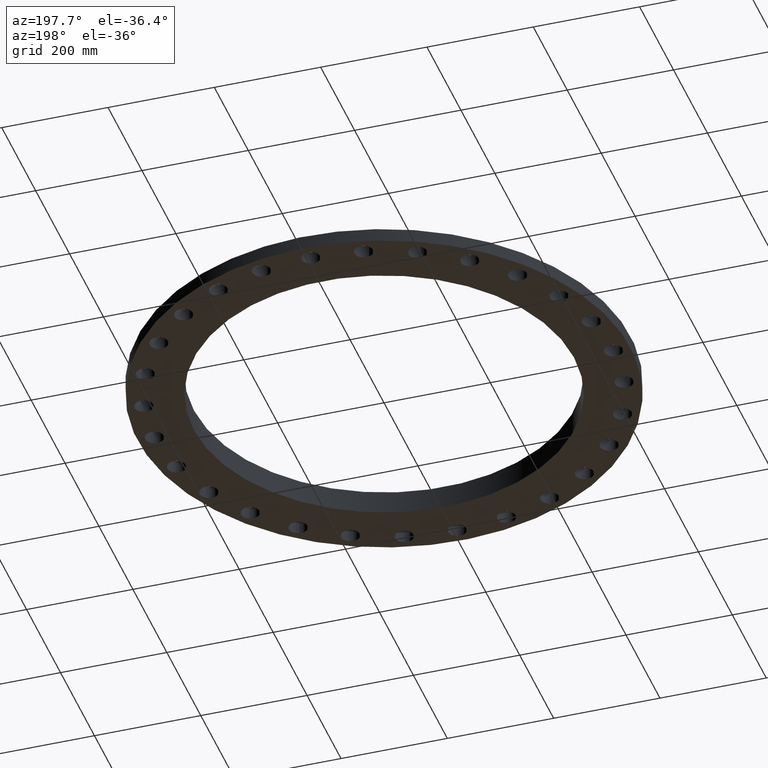
[diagram: clean part render]
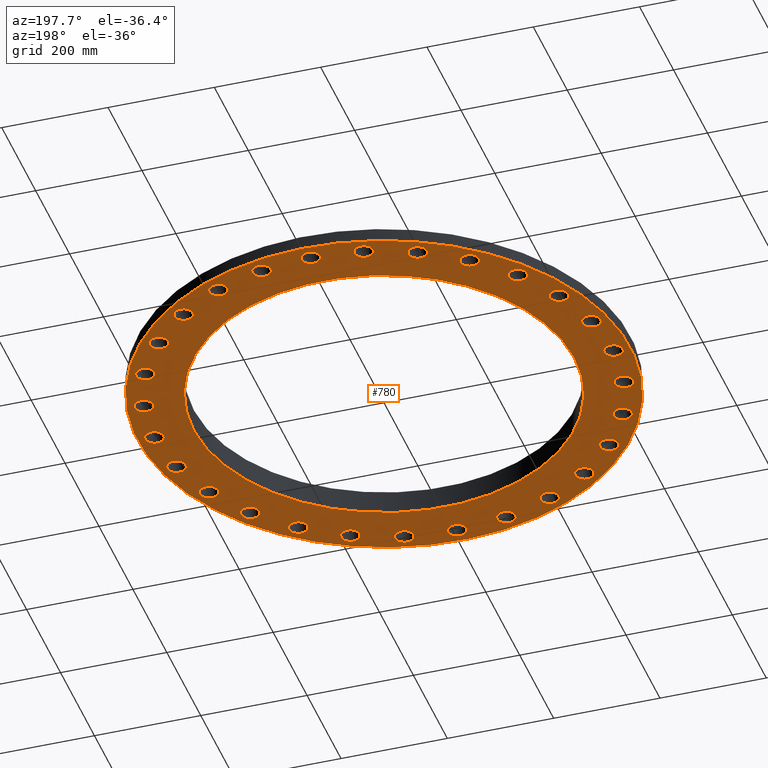
[diagram: same view with one face highlighted and labeled with its STEP entity id]
A machine part, auxiliary view. The second image highlights one B-rep face of the part: STEP entity #780.
In plain terms, the highlighted planar face has unit normal (0, 0, 1).
Its self-contained STEP definition (entity closure, byte-faithful):
#51=AXIS2_PLACEMENT_3D('Circle Axis2P3D',#49,#50,$) ;
#77=AXIS2_PLACEMENT_3D('Circle Axis2P3D',#75,#76,$) ;
#122=AXIS2_PLACEMENT_3D('Circle Axis2P3D',#120,#121,$) ;
#139=AXIS2_PLACEMENT_3D('Circle Axis2P3D',#137,#138,$) ;
#165=AXIS2_PLACEMENT_3D('Circle Axis2P3D',#163,#164,$) ;
#191=AXIS2_PLACEMENT_3D('Circle Axis2P3D',#189,#190,$) ;
#280=AXIS2_PLACEMENT_3D('Plane Axis2P3D',#277,#278,#279) ;
#296=AXIS2_PLACEMENT_3D('Circle Axis2P3D',#294,#295,$) ;
#305=AXIS2_PLACEMENT_3D('Circle Axis2P3D',#303,#304,$) ;
#314=AXIS2_PLACEMENT_3D('Circle Axis2P3D',#312,#313,$) ;
#323=AXIS2_PLACEMENT_3D('Circle Axis2P3D',#321,#322,$) ;
#332=AXIS2_PLACEMENT_3D('Circle Axis2P3D',#330,#331,$) ;
#341=AXIS2_PLACEMENT_3D('Circle Axis2P3D',#339,#340,$) ;
#350=AXIS2_PLACEMENT_3D('Circle Axis2P3D',#348,#349,$) ;
#359=AXIS2_PLACEMENT_3D('Circle Axis2P3D',#357,#358,$) ;
#368=AXIS2_PLACEMENT_3D('Circle Axis2P3D',#366,#367,$) ;
#377=AXIS2_PLACEMENT_3D('Circle Axis2P3D',#375,#376,$) ;
#386=AXIS2_PLACEMENT_3D('Circle Axis2P3D',#384,#385,$) ;
#395=AXIS2_PLACEMENT_3D('Circle Axis2P3D',#393,#394,$) ;
#404=AXIS2_PLACEMENT_3D('Circle Axis2P3D',#402,#403,$) ;
#413=AXIS2_PLACEMENT_3D('Circle Axis2P3D',#411,#412,$) ;
#422=AXIS2_PLACEMENT_3D('Circle Axis2P3D',#420,#421,$) ;
#431=AXIS2_PLACEMENT_3D('Circle Axis2P3D',#429,#430,$) ;
#440=AXIS2_PLACEMENT_3D('Circle Axis2P3D',#438,#439,$) ;
#449=AXIS2_PLACEMENT_3D('Circle Axis2P3D',#447,#448,$) ;
#458=AXIS2_PLACEMENT_3D('Circle Axis2P3D',#456,#457,$) ;
#467=AXIS2_PLACEMENT_3D('Circle Axis2P3D',#465,#466,$) ;
#476=AXIS2_PLACEMENT_3D('Circle Axis2P3D',#474,#475,$) ;
#485=AXIS2_PLACEMENT_3D('Circle Axis2P3D',#483,#484,$) ;
#494=AXIS2_PLACEMENT_3D('Circle Axis2P3D',#492,#493,$) ;
#503=AXIS2_PLACEMENT_3D('Circle Axis2P3D',#501,#502,$) ;
#512=AXIS2_PLACEMENT_3D('Circle Axis2P3D',#510,#511,$) ;
#521=AXIS2_PLACEMENT_3D('Circle Axis2P3D',#519,#520,$) ;
#530=AXIS2_PLACEMENT_3D('Circle Axis2P3D',#528,#529,$) ;
#539=AXIS2_PLACEMENT_3D('Circle Axis2P3D',#537,#538,$) ;
#548=AXIS2_PLACEMENT_3D('Circle Axis2P3D',#546,#547,$) ;
#557=AXIS2_PLACEMENT_3D('Circle Axis2P3D',#555,#556,$) ;
#566=AXIS2_PLACEMENT_3D('Circle Axis2P3D',#564,#565,$) ;
#575=AXIS2_PLACEMENT_3D('Circle Axis2P3D',#573,#574,$) ;
#584=AXIS2_PLACEMENT_3D('Circle Axis2P3D',#582,#583,$) ;
#593=AXIS2_PLACEMENT_3D('Circle Axis2P3D',#591,#592,$) ;
#602=AXIS2_PLACEMENT_3D('Circle Axis2P3D',#600,#601,$) ;
#611=AXIS2_PLACEMENT_3D('Circle Axis2P3D',#609,#610,$) ;
#620=AXIS2_PLACEMENT_3D('Circle Axis2P3D',#618,#619,$) ;
#629=AXIS2_PLACEMENT_3D('Circle Axis2P3D',#627,#628,$) ;
#638=AXIS2_PLACEMENT_3D('Circle Axis2P3D',#636,#637,$) ;
#647=AXIS2_PLACEMENT_3D('Circle Axis2P3D',#645,#646,$) ;
#656=AXIS2_PLACEMENT_3D('Circle Axis2P3D',#654,#655,$) ;
#665=AXIS2_PLACEMENT_3D('Circle Axis2P3D',#663,#664,$) ;
#674=AXIS2_PLACEMENT_3D('Circle Axis2P3D',#672,#673,$) ;
#683=AXIS2_PLACEMENT_3D('Circle Axis2P3D',#681,#682,$) ;
#692=AXIS2_PLACEMENT_3D('Circle Axis2P3D',#690,#691,$) ;
#701=AXIS2_PLACEMENT_3D('Circle Axis2P3D',#699,#700,$) ;
#710=AXIS2_PLACEMENT_3D('Circle Axis2P3D',#708,#709,$) ;
#719=AXIS2_PLACEMENT_3D('Circle Axis2P3D',#717,#718,$) ;
#728=AXIS2_PLACEMENT_3D('Circle Axis2P3D',#726,#727,$) ;
#737=AXIS2_PLACEMENT_3D('Circle Axis2P3D',#735,#736,$) ;
#746=AXIS2_PLACEMENT_3D('Circle Axis2P3D',#744,#745,$) ;
#755=AXIS2_PLACEMENT_3D('Circle Axis2P3D',#753,#754,$) ;
#764=AXIS2_PLACEMENT_3D('Circle Axis2P3D',#762,#763,$) ;
#773=AXIS2_PLACEMENT_3D('Circle Axis2P3D',#771,#772,$) ;
#44=CARTESIAN_POINT('Vertex',(16.3966619888,0.329605057792,0.)) ;
#49=CARTESIAN_POINT('Axis2P3D Location',(17.0000000001,0.,0.)) ;
#53=CARTESIAN_POINT('Vertex',(17.6033380114,-0.329605057792,0.)) ;
#75=CARTESIAN_POINT('Axis2P3D Location',(17.0000000001,0.,0.)) ;
#101=CARTESIAN_POINT('Vertex',(16.0158817546,8.74951607956,-1.39870617276E-016)) ;
#117=CARTESIAN_POINT('Vertex',(-16.0158817546,-8.74951607956,-1.39870617276E-016)) ;
#120=CARTESIAN_POINT('Axis2P3D Location',(0.,0.,0.)) ;
#137=CARTESIAN_POINT('Axis2P3D Location',(0.,0.,0.)) ;
#158=CARTESIAN_POINT('Vertex',(12.3695262099,-6.75750296665,0.)) ;
#163=CARTESIAN_POINT('Axis2P3D Location',(-6.64385432059E-016,-2.09805925913E-016,0.)) ;
#167=CARTESIAN_POINT('Vertex',(-12.3695262099,6.75750296665,0.)) ;
#189=CARTESIAN_POINT('Axis2P3D Location',(-6.64385432059E-016,-2.09805925913E-016,0.)) ;
#277=CARTESIAN_POINT('Axis2P3D Location',(0.,0.,0.)) ;
#294=CARTESIAN_POINT('Axis2P3D Location',(16.5737745072,3.78285587727,0.)) ;
#298=CARTESIAN_POINT('Vertex',(15.9122194142,3.96994171034,0.)) ;
#300=CARTESIAN_POINT('Vertex',(17.2353296002,3.5957700442,0.)) ;
#303=CARTESIAN_POINT('Axis2P3D Location',(16.5737745072,3.78285587727,0.)) ;
#312=CARTESIAN_POINT('Axis2P3D Location',(15.3164707544,7.37602356503,0.)) ;
#316=CARTESIAN_POINT('Vertex',(14.6298717145,7.41120890851,0.)) ;
#318=CARTESIAN_POINT('Vertex',(16.0030697943,7.34083822155,0.)) ;
#321=CARTESIAN_POINT('Axis2P3D Location',(15.3164707544,7.37602356503,0.)) ;
#330=CARTESIAN_POINT('Axis2P3D Location',(13.291135202,10.5993266316,0.)) ;
#334=CARTESIAN_POINT('Vertex',(12.613921158,10.4808471455,0.)) ;
#336=CARTESIAN_POINT('Vertex',(13.968349246,10.7178061178,0.)) ;
#339=CARTESIAN_POINT('Axis2P3D Location',(13.291135202,10.5993266316,0.)) ;
#348=CARTESIAN_POINT('Axis2P3D Location',(10.5993266316,13.291135202,0.)) ;
#352=CARTESIAN_POINT('Vertex',(9.96545592356,13.0249319424,0.)) ;
#354=CARTESIAN_POINT('Vertex',(11.2331973397,13.5573384616,0.)) ;
#357=CARTESIAN_POINT('Axis2P3D Location',(10.5993266316,13.291135202,0.)) ;
#366=CARTESIAN_POINT('Axis2P3D Location',(7.37602356503,15.3164707544,0.)) ;
#370=CARTESIAN_POINT('Vertex',(6.81728111696,14.9158922643,0.)) ;
#372=CARTESIAN_POINT('Vertex',(7.9347660131,15.7170492445,0.)) ;
#375=CARTESIAN_POINT('Axis2P3D Location',(7.37602356503,15.3164707544,0.)) ;
#384=CARTESIAN_POINT('Axis2P3D Location',(3.78285587727,16.5737745072,0.)) ;
#388=CARTESIAN_POINT('Vertex',(3.32725936867,16.0589074648,0.)) ;
#390=CARTESIAN_POINT('Vertex',(4.23845238588,17.0886415496,0.)) ;
#393=CARTESIAN_POINT('Axis2P3D Location',(3.78285587727,16.5737745072,0.)) ;
#402=CARTESIAN_POINT('Axis2P3D Location',(2.30786518505E-015,17.0000000001,0.)) ;
#406=CARTESIAN_POINT('Vertex',(-0.329605057792,16.3966619888,0.)) ;
#408=CARTESIAN_POINT('Vertex',(0.329605057792,17.6033380114,0.)) ;
#411=CARTESIAN_POINT('Axis2P3D Location',(3.35689481461E-015,17.0000000001,0.)) ;
#420=CARTESIAN_POINT('Axis2P3D Location',(-3.78285587727,16.5737745072,0.)) ;
#424=CARTESIAN_POINT('Vertex',(-3.96994171034,15.9122194142,0.)) ;
#426=CARTESIAN_POINT('Vertex',(-3.5957700442,17.2353296002,0.)) ;
#429=CARTESIAN_POINT('Axis2P3D Location',(-3.78285587727,16.5737745072,0.)) ;
#438=CARTESIAN_POINT('Axis2P3D Location',(-7.37602356503,15.3164707544,0.)) ;
#442=CARTESIAN_POINT('Vertex',(-7.41120890851,14.6298717145,0.)) ;
#444=CARTESIAN_POINT('Vertex',(-7.34083822155,16.0030697943,0.)) ;
#447=CARTESIAN_POINT('Axis2P3D Location',(-7.37602356503,15.3164707544,0.)) ;
#456=CARTESIAN_POINT('Axis2P3D Location',(-10.5993266316,13.291135202,0.)) ;
#460=CARTESIAN_POINT('Vertex',(-10.4808471455,12.613921158,0.)) ;
#462=CARTESIAN_POINT('Vertex',(-10.7178061178,13.968349246,0.)) ;
#465=CARTESIAN_POINT('Axis2P3D Location',(-10.5993266316,13.291135202,0.)) ;
#474=CARTESIAN_POINT('Axis2P3D Location',(-13.291135202,10.5993266316,0.)) ;
#478=CARTESIAN_POINT('Vertex',(-13.0249319424,9.96545592356,0.)) ;
#480=CARTESIAN_POINT('Vertex',(-13.5573384616,11.2331973397,0.)) ;
#483=CARTESIAN_POINT('Axis2P3D Location',(-13.291135202,10.5993266316,0.)) ;
#492=CARTESIAN_POINT('Axis2P3D Location',(-15.3164707544,7.37602356503,0.)) ;
#496=CARTESIAN_POINT('Vertex',(-14.9158922643,6.81728111696,0.)) ;
#498=CARTESIAN_POINT('Vertex',(-15.7170492445,7.9347660131,0.)) ;
#501=CARTESIAN_POINT('Axis2P3D Location',(-15.3164707544,7.37602356503,0.)) ;
#510=CARTESIAN_POINT('Axis2P3D Location',(-16.5737745072,3.78285587727,0.)) ;
#514=CARTESIAN_POINT('Vertex',(-16.0589074648,3.32725936867,0.)) ;
#516=CARTESIAN_POINT('Vertex',(-17.0886415496,4.23845238588,0.)) ;
#519=CARTESIAN_POINT('Axis2P3D Location',(-16.5737745072,3.78285587727,0.)) ;
#528=CARTESIAN_POINT('Axis2P3D Location',(-17.0000000001,8.74191357973E-015,0.)) ;
#532=CARTESIAN_POINT('Vertex',(-16.3966619888,-0.329605057792,0.)) ;
#534=CARTESIAN_POINT('Vertex',(-17.6033380114,0.329605057792,0.)) ;
#537=CARTESIAN_POINT('Axis2P3D Location',(-17.0000000001,1.07700375302E-014,0.)) ;
#546=CARTESIAN_POINT('Axis2P3D Location',(-16.5737745072,-3.78285587727,0.)) ;
#550=CARTESIAN_POINT('Vertex',(-15.9122194142,-3.96994171034,0.)) ;
#552=CARTESIAN_POINT('Vertex',(-17.2353296002,-3.5957700442,0.)) ;
#555=CARTESIAN_POINT('Axis2P3D Location',(-16.5737745072,-3.78285587727,0.)) ;
#564=CARTESIAN_POINT('Axis2P3D Location',(-15.3164707544,-7.37602356503,0.)) ;
#568=CARTESIAN_POINT('Vertex',(-14.6298717145,-7.41120890851,0.)) ;
#570=CARTESIAN_POINT('Vertex',(-16.0030697943,-7.34083822155,0.)) ;
#573=CARTESIAN_POINT('Axis2P3D Location',(-15.3164707544,-7.37602356503,0.)) ;
#582=CARTESIAN_POINT('Axis2P3D Location',(-13.291135202,-10.5993266316,0.)) ;
#586=CARTESIAN_POINT('Vertex',(-12.613921158,-10.4808471455,0.)) ;
#588=CARTESIAN_POINT('Vertex',(-13.968349246,-10.7178061178,0.)) ;
#591=CARTESIAN_POINT('Axis2P3D Location',(-13.291135202,-10.5993266316,0.)) ;
#600=CARTESIAN_POINT('Axis2P3D Location',(-10.5993266316,-13.291135202,0.)) ;
#604=CARTESIAN_POINT('Vertex',(-9.96545592356,-13.0249319424,0.)) ;
#606=CARTESIAN_POINT('Vertex',(-11.2331973397,-13.5573384616,0.)) ;
#609=CARTESIAN_POINT('Axis2P3D Location',(-10.5993266316,-13.291135202,0.)) ;
#618=CARTESIAN_POINT('Axis2P3D Location',(-7.37602356503,-15.3164707544,0.)) ;
#622=CARTESIAN_POINT('Vertex',(-6.81728111696,-14.9158922643,0.)) ;
#624=CARTESIAN_POINT('Vertex',(-7.9347660131,-15.7170492445,0.)) ;
#627=CARTESIAN_POINT('Axis2P3D Location',(-7.37602356503,-15.3164707544,0.)) ;
#636=CARTESIAN_POINT('Axis2P3D Location',(-3.78285587727,-16.5737745072,0.)) ;
#640=CARTESIAN_POINT('Vertex',(-3.32725936867,-16.0589074648,0.)) ;
#642=CARTESIAN_POINT('Vertex',(-4.23845238588,-17.0886415496,0.)) ;
#645=CARTESIAN_POINT('Axis2P3D Location',(-3.78285587727,-16.5737745072,0.)) ;
#654=CARTESIAN_POINT('Axis2P3D Location',(-6.2941777774E-016,-17.0000000001,0.)) ;
#658=CARTESIAN_POINT('Vertex',(0.329605057792,-16.3966619888,0.)) ;
#660=CARTESIAN_POINT('Vertex',(-0.329605057792,-17.6033380114,0.)) ;
#663=CARTESIAN_POINT('Axis2P3D Location',(-1.74838271595E-015,-17.0000000001,0.)) ;
#672=CARTESIAN_POINT('Axis2P3D Location',(3.78285587727,-16.5737745072,0.)) ;
#676=CARTESIAN_POINT('Vertex',(3.96994171034,-15.9122194142,0.)) ;
#678=CARTESIAN_POINT('Vertex',(3.5957700442,-17.2353296002,0.)) ;
#681=CARTESIAN_POINT('Axis2P3D Location',(3.78285587727,-16.5737745072,0.)) ;
#690=CARTESIAN_POINT('Axis2P3D Location',(7.37602356503,-15.3164707544,0.)) ;
#694=CARTESIAN_POINT('Vertex',(7.41120890851,-14.6298717145,0.)) ;
#696=CARTESIAN_POINT('Vertex',(7.34083822155,-16.0030697943,0.)) ;
#699=CARTESIAN_POINT('Axis2P3D Location',(7.37602356503,-15.3164707544,0.)) ;
#708=CARTESIAN_POINT('Axis2P3D Location',(10.5993266316,-13.291135202,0.)) ;
#712=CARTESIAN_POINT('Vertex',(10.4808471455,-12.613921158,0.)) ;
#714=CARTESIAN_POINT('Vertex',(10.7178061178,-13.968349246,0.)) ;
#717=CARTESIAN_POINT('Axis2P3D Location',(10.5993266316,-13.291135202,0.)) ;
#726=CARTESIAN_POINT('Axis2P3D Location',(13.291135202,-10.5993266316,0.)) ;
#730=CARTESIAN_POINT('Vertex',(13.0249319424,-9.96545592356,0.)) ;
#732=CARTESIAN_POINT('Vertex',(13.5573384616,-11.2331973397,0.)) ;
#735=CARTESIAN_POINT('Axis2P3D Location',(13.291135202,-10.5993266316,0.)) ;
#744=CARTESIAN_POINT('Axis2P3D Location',(15.3164707544,-7.37602356503,0.)) ;
#748=CARTESIAN_POINT('Vertex',(14.9158922643,-6.81728111696,0.)) ;
#750=CARTESIAN_POINT('Vertex',(15.7170492445,-7.9347660131,0.)) ;
#753=CARTESIAN_POINT('Axis2P3D Location',(15.3164707544,-7.37602356503,0.)) ;
#762=CARTESIAN_POINT('Axis2P3D Location',(16.5737745072,-3.78285587727,0.)) ;
#766=CARTESIAN_POINT('Vertex',(16.0589074648,-3.32725936867,0.)) ;
#768=CARTESIAN_POINT('Vertex',(17.0886415496,-4.23845238588,0.)) ;
#771=CARTESIAN_POINT('Axis2P3D Location',(16.5737745072,-3.78285587727,0.)) ;
#50=DIRECTION('Axis2P3D Direction',(0.,-0.,-0.0393700787402)) ;
#76=DIRECTION('Axis2P3D Direction',(0.,-0.,-0.0393700787402)) ;
#121=DIRECTION('Axis2P3D Direction',(0.,0.,0.0393700787402)) ;
#138=DIRECTION('Axis2P3D Direction',(0.,0.,0.0393700787402)) ;
#164=DIRECTION('Axis2P3D Direction',(0.,-0.,-0.0393700787402)) ;
#190=DIRECTION('Axis2P3D Direction',(0.,-0.,-0.0393700787402)) ;
#278=DIRECTION('Axis2P3D Direction',(0.,0.,0.0393700787402)) ;
#279=DIRECTION('Axis2P3D XDirection',(0.0393700787402,0.,0.)) ;
#295=DIRECTION('Axis2P3D Direction',(0.,0.,0.0393700787402)) ;
#304=DIRECTION('Axis2P3D Direction',(0.,0.,0.0393700787402)) ;
#313=DIRECTION('Axis2P3D Direction',(0.,0.,0.0393700787402)) ;
#322=DIRECTION('Axis2P3D Direction',(0.,0.,0.0393700787402)) ;
#331=DIRECTION('Axis2P3D Direction',(0.,0.,0.0393700787402)) ;
#340=DIRECTION('Axis2P3D Direction',(0.,0.,0.0393700787402)) ;
#349=DIRECTION('Axis2P3D Direction',(0.,0.,0.0393700787402)) ;
#358=DIRECTION('Axis2P3D Direction',(0.,0.,0.0393700787402)) ;
#367=DIRECTION('Axis2P3D Direction',(0.,0.,0.0393700787402)) ;
#376=DIRECTION('Axis2P3D Direction',(0.,0.,0.0393700787402)) ;
#385=DIRECTION('Axis2P3D Direction',(0.,0.,0.0393700787402)) ;
#394=DIRECTION('Axis2P3D Direction',(0.,0.,0.0393700787402)) ;
#403=DIRECTION('Axis2P3D Direction',(0.,0.,0.0393700787402)) ;
#412=DIRECTION('Axis2P3D Direction',(0.,0.,0.0393700787402)) ;
#421=DIRECTION('Axis2P3D Direction',(0.,0.,0.0393700787402)) ;
#430=DIRECTION('Axis2P3D Direction',(0.,0.,0.0393700787402)) ;
#439=DIRECTION('Axis2P3D Direction',(0.,0.,0.0393700787402)) ;
#448=DIRECTION('Axis2P3D Direction',(0.,0.,0.0393700787402)) ;
#457=DIRECTION('Axis2P3D Direction',(0.,0.,0.0393700787402)) ;
#466=DIRECTION('Axis2P3D Direction',(0.,0.,0.0393700787402)) ;
#475=DIRECTION('Axis2P3D Direction',(0.,0.,0.0393700787402)) ;
#484=DIRECTION('Axis2P3D Direction',(0.,0.,0.0393700787402)) ;
#493=DIRECTION('Axis2P3D Direction',(0.,0.,0.0393700787402)) ;
#502=DIRECTION('Axis2P3D Direction',(0.,0.,0.0393700787402)) ;
#511=DIRECTION('Axis2P3D Direction',(0.,0.,0.0393700787402)) ;
#520=DIRECTION('Axis2P3D Direction',(0.,0.,0.0393700787402)) ;
#529=DIRECTION('Axis2P3D Direction',(0.,0.,0.0393700787402)) ;
#538=DIRECTION('Axis2P3D Direction',(0.,0.,0.0393700787402)) ;
#547=DIRECTION('Axis2P3D Direction',(0.,0.,0.0393700787402)) ;
#556=DIRECTION('Axis2P3D Direction',(0.,0.,0.0393700787402)) ;
#565=DIRECTION('Axis2P3D Direction',(0.,0.,0.0393700787402)) ;
#574=DIRECTION('Axis2P3D Direction',(0.,0.,0.0393700787402)) ;
#583=DIRECTION('Axis2P3D Direction',(0.,0.,0.0393700787402)) ;
#592=DIRECTION('Axis2P3D Direction',(0.,0.,0.0393700787402)) ;
#601=DIRECTION('Axis2P3D Direction',(0.,0.,0.0393700787402)) ;
#610=DIRECTION('Axis2P3D Direction',(0.,0.,0.0393700787402)) ;
#619=DIRECTION('Axis2P3D Direction',(0.,0.,0.0393700787402)) ;
#628=DIRECTION('Axis2P3D Direction',(0.,0.,0.0393700787402)) ;
#637=DIRECTION('Axis2P3D Direction',(0.,0.,0.0393700787402)) ;
#646=DIRECTION('Axis2P3D Direction',(0.,0.,0.0393700787402)) ;
#655=DIRECTION('Axis2P3D Direction',(0.,0.,0.0393700787402)) ;
#664=DIRECTION('Axis2P3D Direction',(0.,0.,0.0393700787402)) ;
#673=DIRECTION('Axis2P3D Direction',(0.,0.,0.0393700787402)) ;
#682=DIRECTION('Axis2P3D Direction',(0.,0.,0.0393700787402)) ;
#691=DIRECTION('Axis2P3D Direction',(0.,0.,0.0393700787402)) ;
#700=DIRECTION('Axis2P3D Direction',(0.,0.,0.0393700787402)) ;
#709=DIRECTION('Axis2P3D Direction',(0.,0.,0.0393700787402)) ;
#718=DIRECTION('Axis2P3D Direction',(0.,0.,0.0393700787402)) ;
#727=DIRECTION('Axis2P3D Direction',(0.,0.,0.0393700787402)) ;
#736=DIRECTION('Axis2P3D Direction',(0.,0.,0.0393700787402)) ;
#745=DIRECTION('Axis2P3D Direction',(0.,0.,0.0393700787402)) ;
#754=DIRECTION('Axis2P3D Direction',(0.,0.,0.0393700787402)) ;
#763=DIRECTION('Axis2P3D Direction',(0.,0.,0.0393700787402)) ;
#772=DIRECTION('Axis2P3D Direction',(0.,0.,0.0393700787402)) ;
#283=ORIENTED_EDGE('',*,*,#124,.F.) ;
#284=ORIENTED_EDGE('',*,*,#141,.F.) ;
#287=ORIENTED_EDGE('',*,*,#55,.T.) ;
#288=ORIENTED_EDGE('',*,*,#79,.T.) ;
#291=ORIENTED_EDGE('',*,*,#193,.T.) ;
#292=ORIENTED_EDGE('',*,*,#169,.T.) ;
#309=ORIENTED_EDGE('',*,*,#302,.T.) ;
#310=ORIENTED_EDGE('',*,*,#307,.T.) ;
#327=ORIENTED_EDGE('',*,*,#320,.T.) ;
#328=ORIENTED_EDGE('',*,*,#325,.T.) ;
#345=ORIENTED_EDGE('',*,*,#338,.T.) ;
#346=ORIENTED_EDGE('',*,*,#343,.T.) ;
#363=ORIENTED_EDGE('',*,*,#356,.T.) ;
#364=ORIENTED_EDGE('',*,*,#361,.T.) ;
#381=ORIENTED_EDGE('',*,*,#374,.T.) ;
#382=ORIENTED_EDGE('',*,*,#379,.T.) ;
#399=ORIENTED_EDGE('',*,*,#392,.T.) ;
#400=ORIENTED_EDGE('',*,*,#397,.T.) ;
#417=ORIENTED_EDGE('',*,*,#410,.T.) ;
#418=ORIENTED_EDGE('',*,*,#415,.T.) ;
#435=ORIENTED_EDGE('',*,*,#428,.T.) ;
#436=ORIENTED_EDGE('',*,*,#433,.T.) ;
#453=ORIENTED_EDGE('',*,*,#446,.T.) ;
#454=ORIENTED_EDGE('',*,*,#451,.T.) ;
#471=ORIENTED_EDGE('',*,*,#464,.T.) ;
#472=ORIENTED_EDGE('',*,*,#469,.T.) ;
#489=ORIENTED_EDGE('',*,*,#482,.T.) ;
#490=ORIENTED_EDGE('',*,*,#487,.T.) ;
#507=ORIENTED_EDGE('',*,*,#500,.T.) ;
#508=ORIENTED_EDGE('',*,*,#505,.T.) ;
#525=ORIENTED_EDGE('',*,*,#518,.T.) ;
#526=ORIENTED_EDGE('',*,*,#523,.T.) ;
#543=ORIENTED_EDGE('',*,*,#536,.T.) ;
#544=ORIENTED_EDGE('',*,*,#541,.T.) ;
#561=ORIENTED_EDGE('',*,*,#554,.T.) ;
#562=ORIENTED_EDGE('',*,*,#559,.T.) ;
#579=ORIENTED_EDGE('',*,*,#572,.T.) ;
#580=ORIENTED_EDGE('',*,*,#577,.T.) ;
#597=ORIENTED_EDGE('',*,*,#590,.T.) ;
#598=ORIENTED_EDGE('',*,*,#595,.T.) ;
#615=ORIENTED_EDGE('',*,*,#608,.T.) ;
#616=ORIENTED_EDGE('',*,*,#613,.T.) ;
#633=ORIENTED_EDGE('',*,*,#626,.T.) ;
#634=ORIENTED_EDGE('',*,*,#631,.T.) ;
#651=ORIENTED_EDGE('',*,*,#644,.T.) ;
#652=ORIENTED_EDGE('',*,*,#649,.T.) ;
#669=ORIENTED_EDGE('',*,*,#662,.T.) ;
#670=ORIENTED_EDGE('',*,*,#667,.T.) ;
#687=ORIENTED_EDGE('',*,*,#680,.T.) ;
#688=ORIENTED_EDGE('',*,*,#685,.T.) ;
#705=ORIENTED_EDGE('',*,*,#698,.T.) ;
#706=ORIENTED_EDGE('',*,*,#703,.T.) ;
#723=ORIENTED_EDGE('',*,*,#716,.T.) ;
#724=ORIENTED_EDGE('',*,*,#721,.T.) ;
#741=ORIENTED_EDGE('',*,*,#734,.T.) ;
#742=ORIENTED_EDGE('',*,*,#739,.T.) ;
#759=ORIENTED_EDGE('',*,*,#752,.T.) ;
#760=ORIENTED_EDGE('',*,*,#757,.T.) ;
#777=ORIENTED_EDGE('',*,*,#770,.T.) ;
#778=ORIENTED_EDGE('',*,*,#775,.T.) ;
#289=FACE_BOUND('',#286,.T.) ;
#293=FACE_BOUND('',#290,.T.) ;
#311=FACE_BOUND('',#308,.T.) ;
#329=FACE_BOUND('',#326,.T.) ;
#347=FACE_BOUND('',#344,.T.) ;
#365=FACE_BOUND('',#362,.T.) ;
#383=FACE_BOUND('',#380,.T.) ;
#401=FACE_BOUND('',#398,.T.) ;
#419=FACE_BOUND('',#416,.T.) ;
#437=FACE_BOUND('',#434,.T.) ;
#455=FACE_BOUND('',#452,.T.) ;
#473=FACE_BOUND('',#470,.T.) ;
#491=FACE_BOUND('',#488,.T.) ;
#509=FACE_BOUND('',#506,.T.) ;
#527=FACE_BOUND('',#524,.T.) ;
#545=FACE_BOUND('',#542,.T.) ;
#563=FACE_BOUND('',#560,.T.) ;
#581=FACE_BOUND('',#578,.T.) ;
#599=FACE_BOUND('',#596,.T.) ;
#617=FACE_BOUND('',#614,.T.) ;
#635=FACE_BOUND('',#632,.T.) ;
#653=FACE_BOUND('',#650,.T.) ;
#671=FACE_BOUND('',#668,.T.) ;
#689=FACE_BOUND('',#686,.T.) ;
#707=FACE_BOUND('',#704,.T.) ;
#725=FACE_BOUND('',#722,.T.) ;
#743=FACE_BOUND('',#740,.T.) ;
#761=FACE_BOUND('',#758,.T.) ;
#779=FACE_BOUND('',#776,.T.) ;
#780=ADVANCED_FACE('PartBody',(#285,#289,#293,#311,#329,#347,#365,#383,#401,#419,#437,#455,#473,#491,#509,#527,#545,#563,#581,#599,#617,#635,#653,#671,#689,#707,#725,#743,#761,#779),#281,.F.) ;
#52=CIRCLE('generated circle',#51,0.687500000003) ;
#78=CIRCLE('generated circle',#77,0.687500000003) ;
#123=CIRCLE('generated circle',#122,18.2500000001) ;
#140=CIRCLE('generated circle',#139,18.2500000001) ;
#166=CIRCLE('generated circle',#165,14.0950000001) ;
#192=CIRCLE('generated circle',#191,14.0950000001) ;
#297=CIRCLE('generated circle',#296,0.687500000003) ;
#306=CIRCLE('generated circle',#305,0.687500000003) ;
#315=CIRCLE('generated circle',#314,0.687500000003) ;
#324=CIRCLE('generated circle',#323,0.687500000003) ;
#333=CIRCLE('generated circle',#332,0.687500000003) ;
#342=CIRCLE('generated circle',#341,0.687500000003) ;
#351=CIRCLE('generated circle',#350,0.687500000003) ;
#360=CIRCLE('generated circle',#359,0.687500000003) ;
#369=CIRCLE('generated circle',#368,0.687500000003) ;
#378=CIRCLE('generated circle',#377,0.687500000003) ;
#387=CIRCLE('generated circle',#386,0.687500000003) ;
#396=CIRCLE('generated circle',#395,0.687500000003) ;
#405=CIRCLE('generated circle',#404,0.687500000003) ;
#414=CIRCLE('generated circle',#413,0.687500000003) ;
#423=CIRCLE('generated circle',#422,0.687500000003) ;
#432=CIRCLE('generated circle',#431,0.687500000003) ;
#441=CIRCLE('generated circle',#440,0.687500000003) ;
#450=CIRCLE('generated circle',#449,0.687500000003) ;
#459=CIRCLE('generated circle',#458,0.687500000003) ;
#468=CIRCLE('generated circle',#467,0.687500000003) ;
#477=CIRCLE('generated circle',#476,0.687500000003) ;
#486=CIRCLE('generated circle',#485,0.687500000003) ;
#495=CIRCLE('generated circle',#494,0.687500000003) ;
#504=CIRCLE('generated circle',#503,0.687500000003) ;
#513=CIRCLE('generated circle',#512,0.687500000003) ;
#522=CIRCLE('generated circle',#521,0.687500000003) ;
#531=CIRCLE('generated circle',#530,0.687500000003) ;
#540=CIRCLE('generated circle',#539,0.687500000003) ;
#549=CIRCLE('generated circle',#548,0.687500000003) ;
#558=CIRCLE('generated circle',#557,0.687500000003) ;
#567=CIRCLE('generated circle',#566,0.687500000003) ;
#576=CIRCLE('generated circle',#575,0.687500000003) ;
#585=CIRCLE('generated circle',#584,0.687500000003) ;
#594=CIRCLE('generated circle',#593,0.687500000003) ;
#603=CIRCLE('generated circle',#602,0.687500000003) ;
#612=CIRCLE('generated circle',#611,0.687500000003) ;
#621=CIRCLE('generated circle',#620,0.687500000003) ;
#630=CIRCLE('generated circle',#629,0.687500000003) ;
#639=CIRCLE('generated circle',#638,0.687500000003) ;
#648=CIRCLE('generated circle',#647,0.687500000003) ;
#657=CIRCLE('generated circle',#656,0.687500000003) ;
#666=CIRCLE('generated circle',#665,0.687500000003) ;
#675=CIRCLE('generated circle',#674,0.687500000003) ;
#684=CIRCLE('generated circle',#683,0.687500000003) ;
#693=CIRCLE('generated circle',#692,0.687500000003) ;
#702=CIRCLE('generated circle',#701,0.687500000003) ;
#711=CIRCLE('generated circle',#710,0.687500000003) ;
#720=CIRCLE('generated circle',#719,0.687500000003) ;
#729=CIRCLE('generated circle',#728,0.687500000003) ;
#738=CIRCLE('generated circle',#737,0.687500000003) ;
#747=CIRCLE('generated circle',#746,0.687500000003) ;
#756=CIRCLE('generated circle',#755,0.687500000003) ;
#765=CIRCLE('generated circle',#764,0.687500000003) ;
#774=CIRCLE('generated circle',#773,0.687500000003) ;
#55=EDGE_CURVE('',#54,#45,#52,.F.) ;
#79=EDGE_CURVE('',#45,#54,#78,.F.) ;
#124=EDGE_CURVE('',#118,#102,#123,.T.) ;
#141=EDGE_CURVE('',#102,#118,#140,.T.) ;
#169=EDGE_CURVE('',#168,#159,#166,.F.) ;
#193=EDGE_CURVE('',#159,#168,#192,.F.) ;
#302=EDGE_CURVE('',#299,#301,#297,.T.) ;
#307=EDGE_CURVE('',#301,#299,#306,.T.) ;
#320=EDGE_CURVE('',#317,#319,#315,.T.) ;
#325=EDGE_CURVE('',#319,#317,#324,.T.) ;
#338=EDGE_CURVE('',#335,#337,#333,.T.) ;
#343=EDGE_CURVE('',#337,#335,#342,.T.) ;
#356=EDGE_CURVE('',#353,#355,#351,.T.) ;
#361=EDGE_CURVE('',#355,#353,#360,.T.) ;
#374=EDGE_CURVE('',#371,#373,#369,.T.) ;
#379=EDGE_CURVE('',#373,#371,#378,.T.) ;
#392=EDGE_CURVE('',#389,#391,#387,.T.) ;
#397=EDGE_CURVE('',#391,#389,#396,.T.) ;
#410=EDGE_CURVE('',#407,#409,#405,.T.) ;
#415=EDGE_CURVE('',#409,#407,#414,.T.) ;
#428=EDGE_CURVE('',#425,#427,#423,.T.) ;
#433=EDGE_CURVE('',#427,#425,#432,.T.) ;
#446=EDGE_CURVE('',#443,#445,#441,.T.) ;
#451=EDGE_CURVE('',#445,#443,#450,.T.) ;
#464=EDGE_CURVE('',#461,#463,#459,.T.) ;
#469=EDGE_CURVE('',#463,#461,#468,.T.) ;
#482=EDGE_CURVE('',#479,#481,#477,.T.) ;
#487=EDGE_CURVE('',#481,#479,#486,.T.) ;
#500=EDGE_CURVE('',#497,#499,#495,.T.) ;
#505=EDGE_CURVE('',#499,#497,#504,.T.) ;
#518=EDGE_CURVE('',#515,#517,#513,.T.) ;
#523=EDGE_CURVE('',#517,#515,#522,.T.) ;
#536=EDGE_CURVE('',#533,#535,#531,.T.) ;
#541=EDGE_CURVE('',#535,#533,#540,.T.) ;
#554=EDGE_CURVE('',#551,#553,#549,.T.) ;
#559=EDGE_CURVE('',#553,#551,#558,.T.) ;
#572=EDGE_CURVE('',#569,#571,#567,.T.) ;
#577=EDGE_CURVE('',#571,#569,#576,.T.) ;
#590=EDGE_CURVE('',#587,#589,#585,.T.) ;
#595=EDGE_CURVE('',#589,#587,#594,.T.) ;
#608=EDGE_CURVE('',#605,#607,#603,.T.) ;
#613=EDGE_CURVE('',#607,#605,#612,.T.) ;
#626=EDGE_CURVE('',#623,#625,#621,.T.) ;
#631=EDGE_CURVE('',#625,#623,#630,.T.) ;
#644=EDGE_CURVE('',#641,#643,#639,.T.) ;
#649=EDGE_CURVE('',#643,#641,#648,.T.) ;
#662=EDGE_CURVE('',#659,#661,#657,.T.) ;
#667=EDGE_CURVE('',#661,#659,#666,.T.) ;
#680=EDGE_CURVE('',#677,#679,#675,.T.) ;
#685=EDGE_CURVE('',#679,#677,#684,.T.) ;
#698=EDGE_CURVE('',#695,#697,#693,.T.) ;
#703=EDGE_CURVE('',#697,#695,#702,.T.) ;
#716=EDGE_CURVE('',#713,#715,#711,.T.) ;
#721=EDGE_CURVE('',#715,#713,#720,.T.) ;
#734=EDGE_CURVE('',#731,#733,#729,.T.) ;
#739=EDGE_CURVE('',#733,#731,#738,.T.) ;
#752=EDGE_CURVE('',#749,#751,#747,.T.) ;
#757=EDGE_CURVE('',#751,#749,#756,.T.) ;
#770=EDGE_CURVE('',#767,#769,#765,.T.) ;
#775=EDGE_CURVE('',#769,#767,#774,.T.) ;
#282=EDGE_LOOP('',(#283,#284)) ;
#286=EDGE_LOOP('',(#287,#288)) ;
#290=EDGE_LOOP('',(#291,#292)) ;
#308=EDGE_LOOP('',(#309,#310)) ;
#326=EDGE_LOOP('',(#327,#328)) ;
#344=EDGE_LOOP('',(#345,#346)) ;
#362=EDGE_LOOP('',(#363,#364)) ;
#380=EDGE_LOOP('',(#381,#382)) ;
#398=EDGE_LOOP('',(#399,#400)) ;
#416=EDGE_LOOP('',(#417,#418)) ;
#434=EDGE_LOOP('',(#435,#436)) ;
#452=EDGE_LOOP('',(#453,#454)) ;
#470=EDGE_LOOP('',(#471,#472)) ;
#488=EDGE_LOOP('',(#489,#490)) ;
#506=EDGE_LOOP('',(#507,#508)) ;
#524=EDGE_LOOP('',(#525,#526)) ;
#542=EDGE_LOOP('',(#543,#544)) ;
#560=EDGE_LOOP('',(#561,#562)) ;
#578=EDGE_LOOP('',(#579,#580)) ;
#596=EDGE_LOOP('',(#597,#598)) ;
#614=EDGE_LOOP('',(#615,#616)) ;
#632=EDGE_LOOP('',(#633,#634)) ;
#650=EDGE_LOOP('',(#651,#652)) ;
#668=EDGE_LOOP('',(#669,#670)) ;
#686=EDGE_LOOP('',(#687,#688)) ;
#704=EDGE_LOOP('',(#705,#706)) ;
#722=EDGE_LOOP('',(#723,#724)) ;
#740=EDGE_LOOP('',(#741,#742)) ;
#758=EDGE_LOOP('',(#759,#760)) ;
#776=EDGE_LOOP('',(#777,#778)) ;
#285=FACE_OUTER_BOUND('',#282,.T.) ;
#281=PLANE('',#280) ;
#45=VERTEX_POINT('',#44) ;
#54=VERTEX_POINT('',#53) ;
#102=VERTEX_POINT('',#101) ;
#118=VERTEX_POINT('',#117) ;
#159=VERTEX_POINT('',#158) ;
#168=VERTEX_POINT('',#167) ;
#299=VERTEX_POINT('',#298) ;
#301=VERTEX_POINT('',#300) ;
#317=VERTEX_POINT('',#316) ;
#319=VERTEX_POINT('',#318) ;
#335=VERTEX_POINT('',#334) ;
#337=VERTEX_POINT('',#336) ;
#353=VERTEX_POINT('',#352) ;
#355=VERTEX_POINT('',#354) ;
#371=VERTEX_POINT('',#370) ;
#373=VERTEX_POINT('',#372) ;
#389=VERTEX_POINT('',#388) ;
#391=VERTEX_POINT('',#390) ;
#407=VERTEX_POINT('',#406) ;
#409=VERTEX_POINT('',#408) ;
#425=VERTEX_POINT('',#424) ;
#427=VERTEX_POINT('',#426) ;
#443=VERTEX_POINT('',#442) ;
#445=VERTEX_POINT('',#444) ;
#461=VERTEX_POINT('',#460) ;
#463=VERTEX_POINT('',#462) ;
#479=VERTEX_POINT('',#478) ;
#481=VERTEX_POINT('',#480) ;
#497=VERTEX_POINT('',#496) ;
#499=VERTEX_POINT('',#498) ;
#515=VERTEX_POINT('',#514) ;
#517=VERTEX_POINT('',#516) ;
#533=VERTEX_POINT('',#532) ;
#535=VERTEX_POINT('',#534) ;
#551=VERTEX_POINT('',#550) ;
#553=VERTEX_POINT('',#552) ;
#569=VERTEX_POINT('',#568) ;
#571=VERTEX_POINT('',#570) ;
#587=VERTEX_POINT('',#586) ;
#589=VERTEX_POINT('',#588) ;
#605=VERTEX_POINT('',#604) ;
#607=VERTEX_POINT('',#606) ;
#623=VERTEX_POINT('',#622) ;
#625=VERTEX_POINT('',#624) ;
#641=VERTEX_POINT('',#640) ;
#643=VERTEX_POINT('',#642) ;
#659=VERTEX_POINT('',#658) ;
#661=VERTEX_POINT('',#660) ;
#677=VERTEX_POINT('',#676) ;
#679=VERTEX_POINT('',#678) ;
#695=VERTEX_POINT('',#694) ;
#697=VERTEX_POINT('',#696) ;
#713=VERTEX_POINT('',#712) ;
#715=VERTEX_POINT('',#714) ;
#731=VERTEX_POINT('',#730) ;
#733=VERTEX_POINT('',#732) ;
#749=VERTEX_POINT('',#748) ;
#751=VERTEX_POINT('',#750) ;
#767=VERTEX_POINT('',#766) ;
#769=VERTEX_POINT('',#768) ;